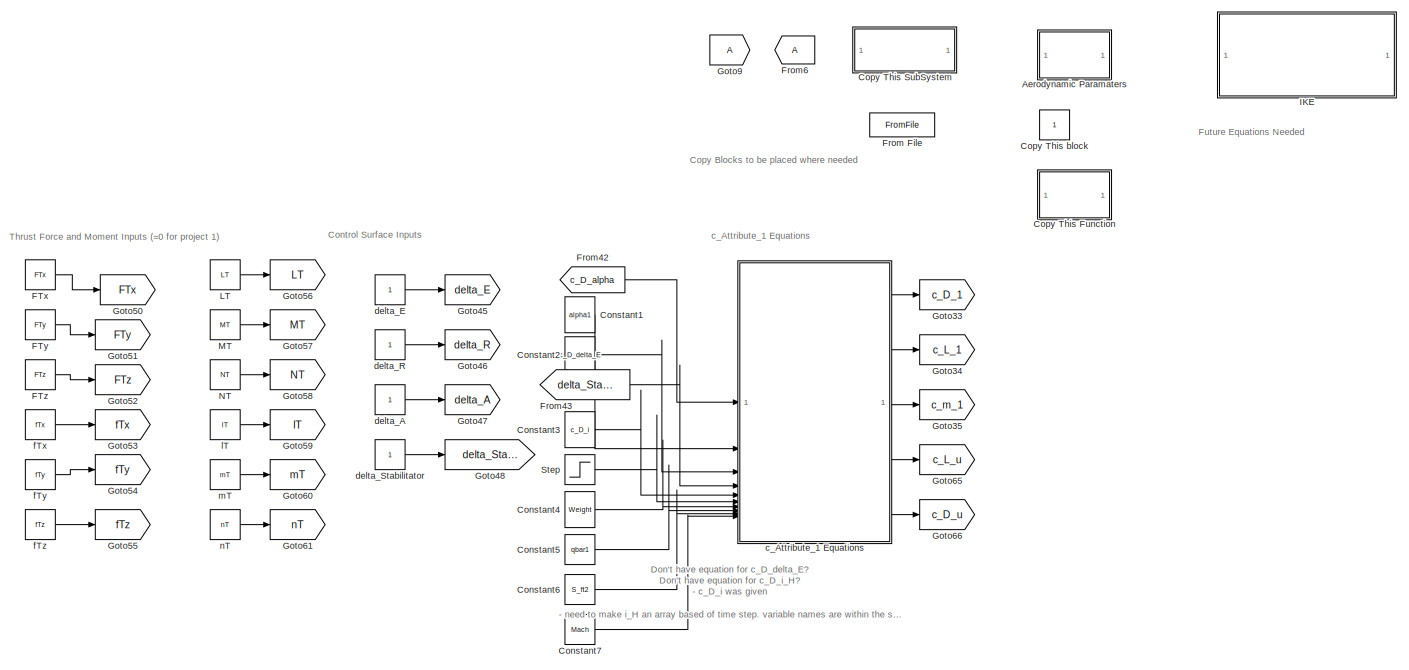
[diagram: root canvas - part 1/5, top left region]
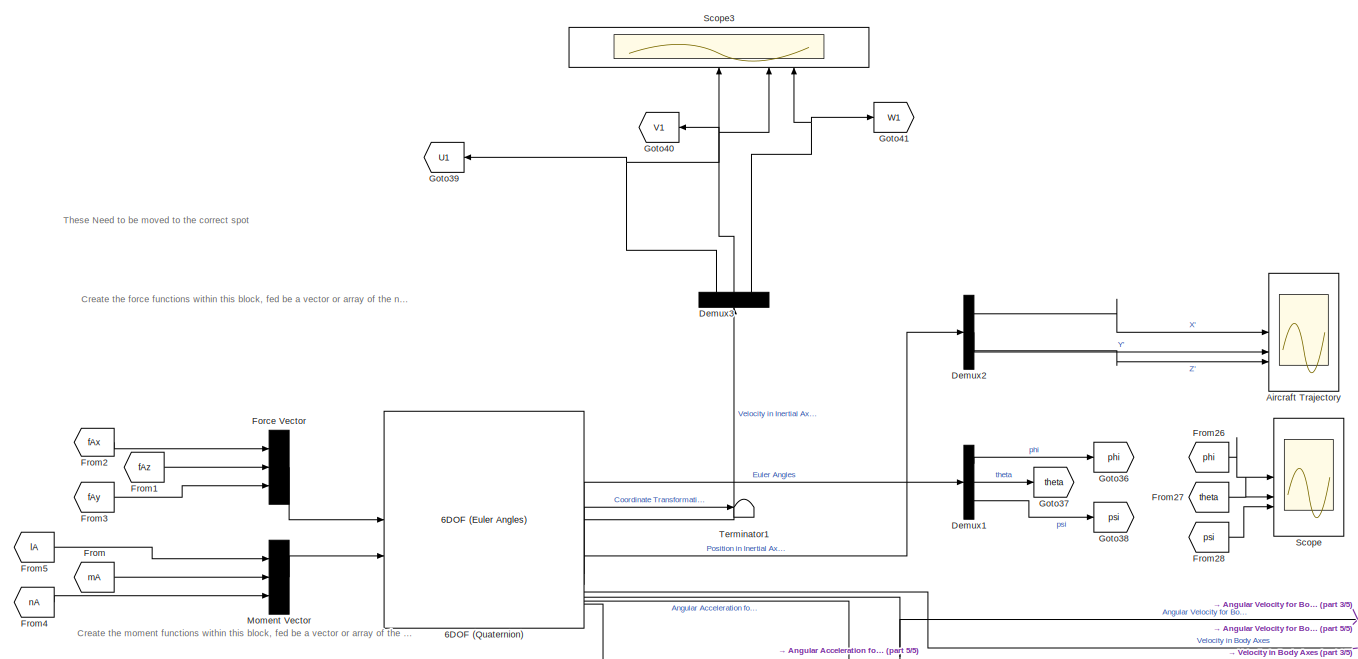
[diagram: root canvas - part 2/5, central region]
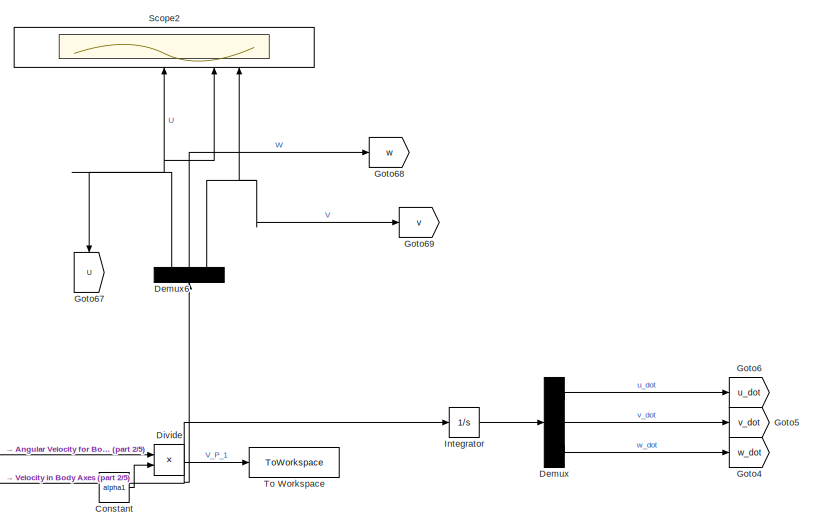
[diagram: root canvas - part 3/5, middle right region]
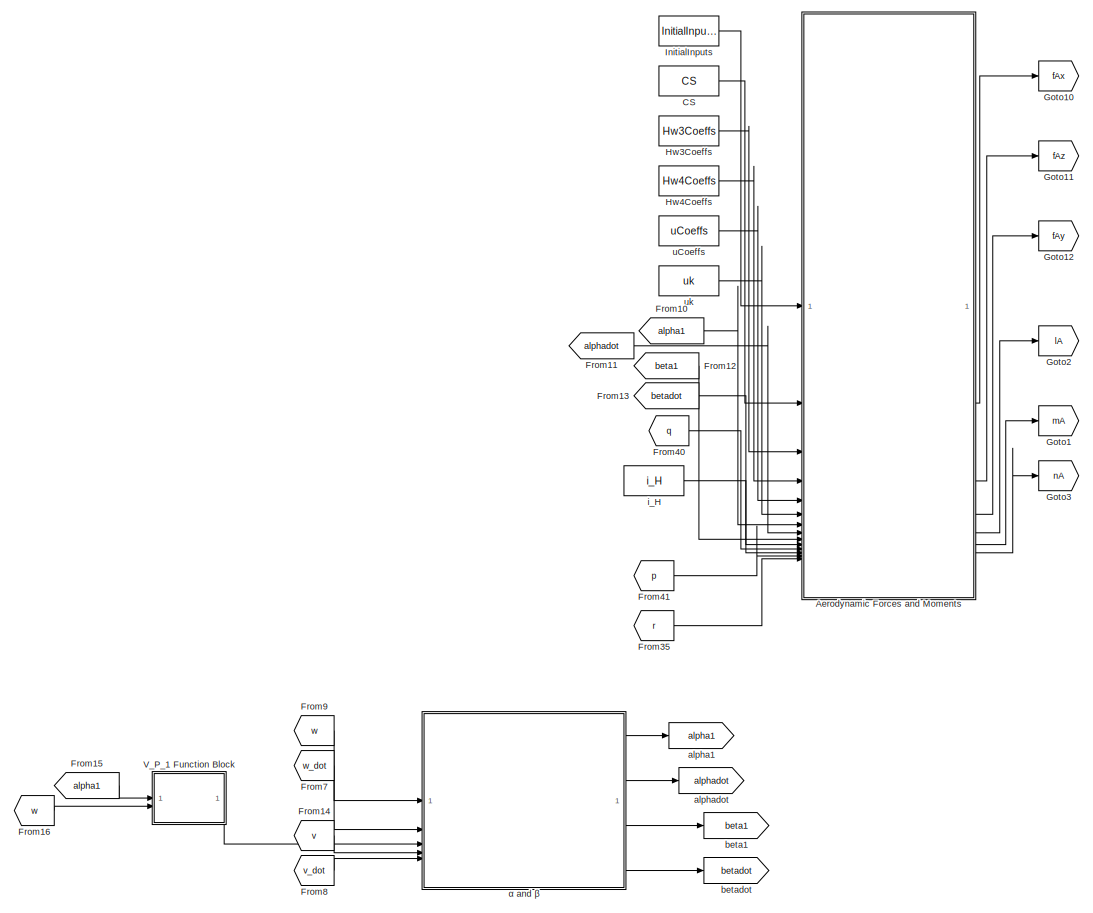
[diagram: root canvas - part 4/5, bottom left region]
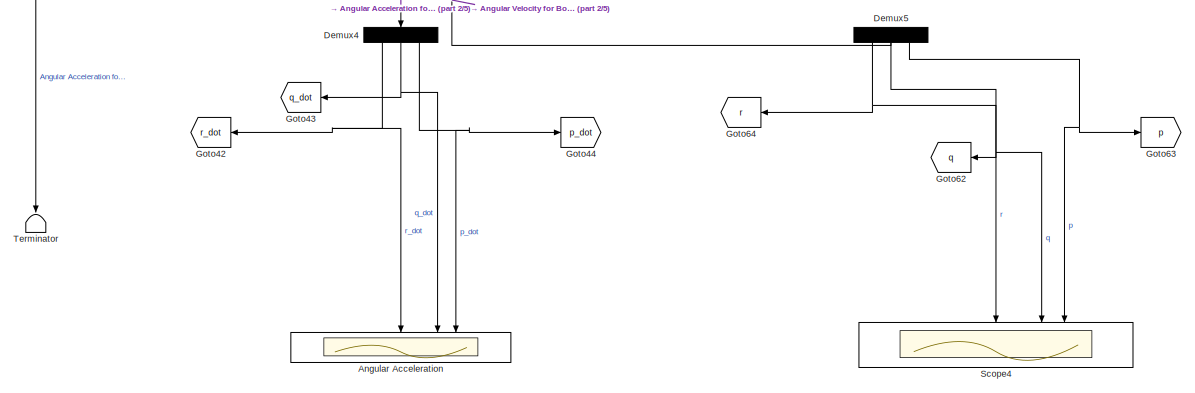
[diagram: root canvas - part 5/5, bottom center region]
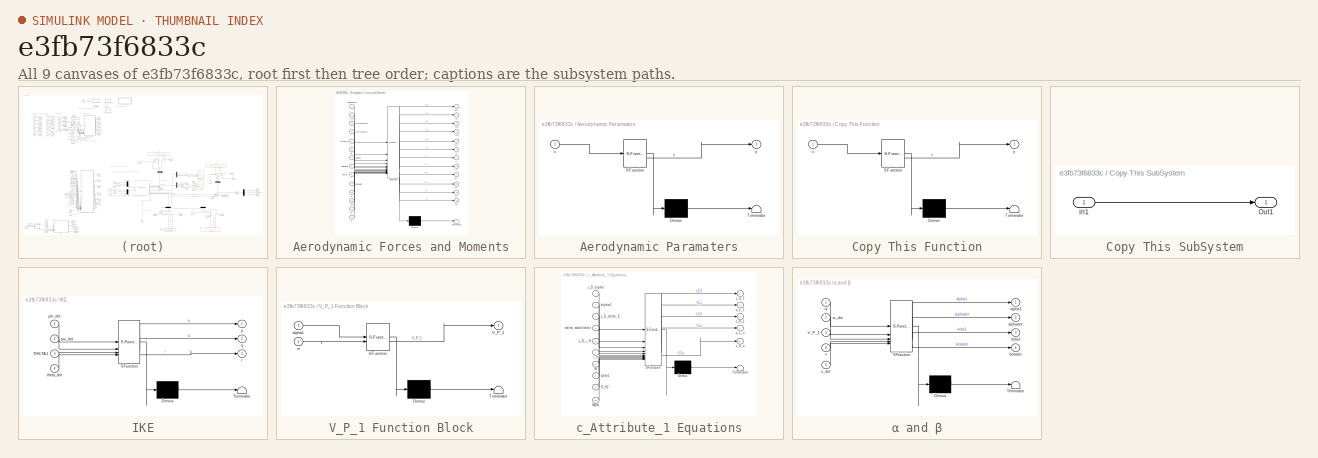
[diagram: thumbnail index - all 9 canvases of the model, root first then tree order]
MODEL slx_e3fb73f6833c
KIND model
CONFIG AbsTol = auto
CONFIG EnableMultiTasking = off
CONFIG FixedStep = auto
CONFIG MaxStep = auto
CONFIG MinStep = auto
CONFIG RelTol = 1e-3
CONFIG SampleTimeConstraint = Unconstrained
CONFIG SolverName = VariableStepAuto
CONFIG StartTime = 0.0
CONFIG StopTime = 10.0
BLOCK [Reference] 6DOF (Quaternion)  REF=shared6dof/6DOF (Euler Angles)
  LibrarySourceBlock = aerolib6dof2/6DOF (Quaternion)
  SourceBlock = shared6dof/6DOF (Euler Angles)
  SourceType = 6DOF EoM (Body Axis)
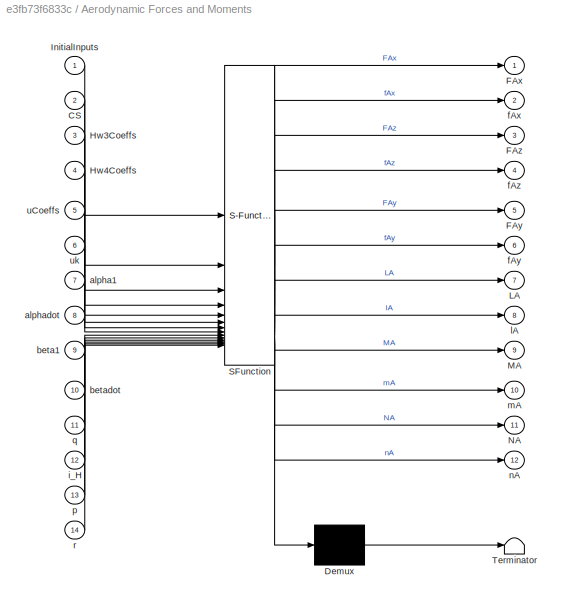
BLOCK [SubSystem] Aerodynamic Forces and Moments
  ErrorFcn = Stateflow.Translate.translate
  PermitHierarchicalResolution = ExplicitOnly
  SFBlockType = MATLAB Function
  TreatAsAtomicUnit = on
BLOCK [Demux] Aerodynamic Forces and Moments/ Demux 
  Outputs = 1
BLOCK [S-Function] Aerodynamic Forces and Moments/ SFunction 
  EnableBusSupport = on
  FunctionName = sf_sfun
  PortCounts = [14 13]
  SFcnIsStateOwnerBlock = off
  SFunctionDeploymentMode = off
  Tag = Stateflow S-Function 13
BLOCK [Terminator] Aerodynamic Forces and Moments/ Terminator 
BLOCK [Inport] Aerodynamic Forces and Moments/CS
  Port = 2
BLOCK [Outport] Aerodynamic Forces and Moments/FAx
BLOCK [Outport] Aerodynamic Forces and Moments/FAy
  Port = 5
BLOCK [Outport] Aerodynamic Forces and Moments/FAz
  Port = 3
BLOCK [Inport] Aerodynamic Forces and Moments/Hw3Coeffs
  Port = 3
BLOCK [Inport] Aerodynamic Forces and Moments/Hw4Coeffs
  Port = 4
BLOCK [Inport] Aerodynamic Forces and Moments/InitialInputs
BLOCK [Outport] Aerodynamic Forces and Moments/LA
  Port = 7
BLOCK [Outport] Aerodynamic Forces and Moments/MA
  Port = 9
BLOCK [Outport] Aerodynamic Forces and Moments/NA
  Port = 11
BLOCK [Inport] Aerodynamic Forces and Moments/alpha1
  Port = 7
BLOCK [Inport] Aerodynamic Forces and Moments/alphadot
  Port = 8
BLOCK [Inport] Aerodynamic Forces and Moments/beta1
  Port = 9
BLOCK [Inport] Aerodynamic Forces and Moments/betadot
  Port = 10
BLOCK [Outport] Aerodynamic Forces and Moments/fAx
  Port = 2
BLOCK [Outport] Aerodynamic Forces and Moments/fAy
  Port = 6
BLOCK [Outport] Aerodynamic Forces and Moments/fAz
  Port = 4
BLOCK [Inport] Aerodynamic Forces and Moments/i_H
  Port = 12
BLOCK [Outport] Aerodynamic Forces and Moments/lA
  Port = 8
BLOCK [Outport] Aerodynamic Forces and Moments/mA
  Port = 10
BLOCK [Outport] Aerodynamic Forces and Moments/nA
  Port = 12
BLOCK [Inport] Aerodynamic Forces and Moments/p
  Port = 13
BLOCK [Inport] Aerodynamic Forces and Moments/q
  Port = 11
BLOCK [Inport] Aerodynamic Forces and Moments/r
  Port = 14
BLOCK [Inport] Aerodynamic Forces and Moments/uCoeffs
  Port = 5
BLOCK [Inport] Aerodynamic Forces and Moments/uk
  Port = 6
BLOCK [SubSystem] Aerodynamic Paramaters
  ErrorFcn = Stateflow.Translate.translate
  PermitHierarchicalResolution = ExplicitOnly
  SFBlockType = MATLAB Function
  TreatAsAtomicUnit = on
BLOCK [Demux] Aerodynamic Paramaters/ Demux 
  Outputs = 1
BLOCK [S-Function] Aerodynamic Paramaters/ SFunction 
  EnableBusSupport = on
  FunctionName = sf_sfun
  PortCounts = [1 2]
  SFcnIsStateOwnerBlock = off
  SFunctionDeploymentMode = off
  Tag = Stateflow S-Function 3
BLOCK [Terminator] Aerodynamic Paramaters/ Terminator 
BLOCK [Inport] Aerodynamic Paramaters/u
BLOCK [Outport] Aerodynamic Paramaters/y
BLOCK [Scope] Aircraft Trajectory
  Floating = off
  NumInputPorts = 3
  ScopeSpecificationString = Simulink.scopes.TimeScopeBlockCfg('CurrentConfiguration', extmgr.ConfigurationSet(extmgr.Configuration('Core','General UI',true),extmgr.Configuration('Core','Source UI',true),extmgr.Configuration('Sources','WiredSimulink',true,'DataLoggingVariableName','ScopeData2'),extmgr.Configuration('Visuals','Time Domain',true),extmgr.Configuration('Tools','Plot Navigation',true),extmgr.Configuration('Tools',...<+58ch>
BLOCK [Scope] Angular Acceleration
  Floating = off
  NumInputPorts = 3
  ScopeSpecificationString = Simulink.scopes.TimeScopeBlockCfg('CurrentConfiguration', extmgr.ConfigurationSet(extmgr.Configuration('Core','General UI',true),extmgr.Configuration('Core','Source UI',true),extmgr.Configuration('Sources','WiredSimulink',true,'DataLoggingVariableName','ScopeData4'),extmgr.Configuration('Visuals','Time Domain',true),extmgr.Configuration('Tools','Plot Navigation',true),extmgr.Configuration('Tools',...<+40ch>
BLOCK [Constant] CS
  Value = CS
BLOCK [Constant] Constant
  Value = alpha1
BLOCK [Constant] Constant1
  NameLocation = left
  Value = alpha1
BLOCK [Constant] Constant2
  NameLocation = left
  Value = c_D_delta_E
BLOCK [Constant] Constant3
  NameLocation = left
  Value = c_D_i
BLOCK [Constant] Constant4
  NameLocation = left
  Value = Weight
BLOCK [Constant] Constant5
  Value = qbar1
BLOCK [Constant] Constant6
  Value = S_ft2
BLOCK [Constant] Constant7
  Value = Mach
BLOCK [SubSystem] Copy This Function
  ErrorFcn = Stateflow.Translate.translate
  PermitHierarchicalResolution = ExplicitOnly
  SFBlockType = MATLAB Function
  TreatAsAtomicUnit = on
BLOCK [Demux] Copy This Function/ Demux 
  Outputs = 1
BLOCK [S-Function] Copy This Function/ SFunction 
  EnableBusSupport = on
  FunctionName = sf_sfun
  PortCounts = [1 2]
  SFcnIsStateOwnerBlock = off
  SFunctionDeploymentMode = off
  Tag = Stateflow S-Function 4
BLOCK [Terminator] Copy This Function/ Terminator 
BLOCK [Inport] Copy This Function/u
BLOCK [Outport] Copy This Function/y
BLOCK [SubSystem] Copy This SubSystem
BLOCK [Inport] Copy This SubSystem/In1
BLOCK [Outport] Copy This SubSystem/Out1
BLOCK [Constant] Copy This block
BLOCK [Demux] Demux
  Outputs = 3
BLOCK [Demux] Demux1
  Outputs = 3
BLOCK [Demux] Demux2
  Outputs = 3
BLOCK [Demux] Demux3
  NameLocation = right
  Outputs = 3
BLOCK [Demux] Demux4
  NameLocation = left
  Outputs = 3
BLOCK [Demux] Demux5
  NameLocation = left
  Outputs = 3
BLOCK [Demux] Demux6
  NameLocation = right
  Outputs = 3
BLOCK [Product] Divide
  Inputs = */
  Multiplication = Matrix(*)
BLOCK [Constant] FTx
  Value = FTx
BLOCK [Constant] FTy
  Value = FTy
BLOCK [Constant] FTz
  Value = FTz
BLOCK [Mux] Force Vector
  DisplayOption = bar
  Inputs = 3
BLOCK [From] From
  GotoTag = mA
BLOCK [FromFile] From File
  SampleTime = 0
BLOCK [From] From1
  GotoTag = fAz
BLOCK [From] From10
  GotoTag = alpha1
BLOCK [From] From11
  GotoTag = alphadot
BLOCK [From] From12
  GotoTag = beta1
BLOCK [From] From13
  GotoTag = betadot
BLOCK [From] From14
  GotoTag = v
BLOCK [From] From15
  GotoTag = alpha1
BLOCK [From] From16
  GotoTag = w
BLOCK [From] From2
  GotoTag = fAx
BLOCK [From] From26
  GotoTag = phi
BLOCK [From] From27
  GotoTag = theta
BLOCK [From] From28
  GotoTag = psi
BLOCK [From] From3
  GotoTag = fAy
BLOCK [From] From35
  GotoTag = r
BLOCK [From] From4
  GotoTag = nA
BLOCK [From] From40
  GotoTag = q
BLOCK [From] From41
  GotoTag = p
BLOCK [From] From42
  GotoTag = c_D_alpha
BLOCK [From] From43
  GotoTag = delta_Stabilitator
BLOCK [From] From5
  GotoTag = lA
BLOCK [From] From6
BLOCK [From] From7
  GotoTag = w_dot
BLOCK [From] From8
  GotoTag = v_dot
BLOCK [From] From9
  GotoTag = w
BLOCK [Goto] Goto1
  GotoTag = mA
BLOCK [Goto] Goto10
  GotoTag = fAx
BLOCK [Goto] Goto11
  GotoTag = fAz
BLOCK [Goto] Goto12
  GotoTag = fAy
BLOCK [Goto] Goto2
  GotoTag = lA
BLOCK [Goto] Goto3
  GotoTag = nA
BLOCK [Goto] Goto33
  GotoTag = c_D_1
BLOCK [Goto] Goto34
  GotoTag = c_L_1
BLOCK [Goto] Goto35
  GotoTag = c_m_1
BLOCK [Goto] Goto36
  GotoTag = phi
BLOCK [Goto] Goto37
  GotoTag = theta
BLOCK [Goto] Goto38
  GotoTag = psi
BLOCK [Goto] Goto39
  GotoTag = U1
BLOCK [Goto] Goto4
  GotoTag = w_dot
BLOCK [Goto] Goto40
  GotoTag = V1
BLOCK [Goto] Goto41
  GotoTag = W1
BLOCK [Goto] Goto42
  GotoTag = r_dot
BLOCK [Goto] Goto43
  GotoTag = q_dot
BLOCK [Goto] Goto44
  GotoTag = p_dot
BLOCK [Goto] Goto45
  GotoTag = delta_E
BLOCK [Goto] Goto46
  GotoTag = delta_R
BLOCK [Goto] Goto47
  GotoTag = delta_A
BLOCK [Goto] Goto48
  GotoTag = delta_Stabilitator
BLOCK [Goto] Goto5
  GotoTag = v_dot
  NameLocation = top
BLOCK [Goto] Goto50
  GotoTag = FTx
BLOCK [Goto] Goto51
  GotoTag = FTy
BLOCK [Goto] Goto52
  GotoTag = FTz
BLOCK [Goto] Goto53
  GotoTag = fTx
BLOCK [Goto] Goto54
  GotoTag = fTy
BLOCK [Goto] Goto55
  GotoTag = fTz
BLOCK [Goto] Goto56
  GotoTag = LT
BLOCK [Goto] Goto57
  GotoTag = MT
BLOCK [Goto] Goto58
  GotoTag = NT
BLOCK [Goto] Goto59
  GotoTag = lT
BLOCK [Goto] Goto6
  GotoTag = u_dot
BLOCK [Goto] Goto60
  GotoTag = mT
BLOCK [Goto] Goto61
  GotoTag = nT
BLOCK [Goto] Goto62
  GotoTag = q
BLOCK [Goto] Goto63
  GotoTag = p
BLOCK [Goto] Goto64
  GotoTag = r
BLOCK [Goto] Goto65
  GotoTag = c_L_u
BLOCK [Goto] Goto66
  GotoTag = c_D_u
BLOCK [Goto] Goto67
  GotoTag = U
  NameLocation = left
BLOCK [Goto] Goto68
  GotoTag = w
BLOCK [Goto] Goto69
  GotoTag = v
  NameLocation = top
BLOCK [Goto] Goto9
BLOCK [Constant] Hw3Coeffs
  Value = Hw3Coeffs
BLOCK [Constant] Hw4Coeffs
  Value = Hw4Coeffs
BLOCK [SubSystem] IKE
  ErrorFcn = Stateflow.Translate.translate
  PermitHierarchicalResolution = ExplicitOnly
  SFBlockType = MATLAB Function
  TreatAsAtomicUnit = on
BLOCK [Demux] IKE/ Demux 
  Outputs = 1
BLOCK [S-Function] IKE/ SFunction 
  EnableBusSupport = on
  FunctionName = sf_sfun
  PortCounts = [4 4]
  SFcnIsStateOwnerBlock = off
  SFunctionDeploymentMode = off
  Tag = Stateflow S-Function 15
BLOCK [Terminator] IKE/ Terminator 
BLOCK [Inport] IKE/THETA1
  Port = 3
BLOCK [Outport] IKE/p
BLOCK [Inport] IKE/phi_dot
BLOCK [Inport] IKE/psi_dot
  Port = 2
BLOCK [Outport] IKE/q
  Port = 2
BLOCK [Outport] IKE/r
  Port = 3
BLOCK [Inport] IKE/theta_dot
  Port = 4
BLOCK [Constant] InitialInputs
  Value = InitialInputs
BLOCK [Integrator] Integrator
BLOCK [Constant] LT
  Value = LT
BLOCK [Constant] MT
  Value = MT
BLOCK [Mux] Moment Vector
  DisplayOption = bar
  Inputs = 3
BLOCK [Constant] NT
  Value = NT
BLOCK [Scope] Scope
  Floating = off
  NumInputPorts = 3
  ScopeSpecificationString = Simulink.scopes.TimeScopeBlockCfg('CurrentConfiguration', extmgr.ConfigurationSet(extmgr.Configuration('Core','General UI',true),extmgr.Configuration('Core','Source UI',true),extmgr.Configuration('Sources','WiredSimulink',true,'DataLoggingVariableName','ScopeData1'),extmgr.Configuration('Visuals','Time Domain',true),extmgr.Configuration('Tools','Plot Navigation',true),extmgr.Configuration('Tools',...<+40ch>
BLOCK [Scope] Scope2
  Floating = off
  NameLocation = right
  NumInputPorts = 3
  ScopeSpecificationString = Simulink.scopes.TimeScopeBlockCfg('CurrentConfiguration', extmgr.ConfigurationSet(extmgr.Configuration('Core','General UI',true),extmgr.Configuration('Core','Source UI',true),extmgr.Configuration('Sources','WiredSimulink',true,'DataLoggingVariableName','ScopeData1'),extmgr.Configuration('Visuals','Time Domain',true),extmgr.Configuration('Tools','Plot Navigation',true),extmgr.Configuration('Tools',...<+58ch>
BLOCK [Scope] Scope3
  Floating = off
  NameLocation = right
  NumInputPorts = 3
  ScopeSpecificationString = Simulink.scopes.TimeScopeBlockCfg('CurrentConfiguration', extmgr.ConfigurationSet(extmgr.Configuration('Core','General UI',true),extmgr.Configuration('Core','Source UI',true),extmgr.Configuration('Sources','WiredSimulink',true,'DataLoggingVariableName','ScopeData3'),extmgr.Configuration('Visuals','Time Domain',true),extmgr.Configuration('Tools','Plot Navigation',true),extmgr.Configuration('Tools',...<+58ch>
BLOCK [Scope] Scope4
  Floating = off
  NameLocation = left
  NumInputPorts = 3
  ScopeSpecificationString = Simulink.scopes.TimeScopeBlockCfg('CurrentConfiguration', extmgr.ConfigurationSet(extmgr.Configuration('Core','General UI',true),extmgr.Configuration('Core','Source UI',true),extmgr.Configuration('Sources','WiredSimulink',true,'DataLoggingVariableName','ScopeData5'),extmgr.Configuration('Visuals','Time Domain',true),extmgr.Configuration('Tools','Plot Navigation',true),extmgr.Configuration('Tools',...<+40ch>
BLOCK [Step] Step
  After = t_max
  Before = i_H
  SampleTime = 0
  Time = t
BLOCK [Terminator] Terminator
  NameLocation = left
BLOCK [Terminator] Terminator1
BLOCK [ToWorkspace] To Workspace
  FixptAsFi = on
  MaxDataPoints = inf
  SampleTime = -1
  SaveFormat = Timeseries
  VariableName = simout
BLOCK [SubSystem] V_P_1 Function Block
  ErrorFcn = Stateflow.Translate.translate
  PermitHierarchicalResolution = ExplicitOnly
  SFBlockType = MATLAB Function
  TreatAsAtomicUnit = on
BLOCK [Demux] V_P_1 Function Block/ Demux 
  Outputs = 1
BLOCK [S-Function] V_P_1 Function Block/ SFunction 
  EnableBusSupport = off
  FunctionName = sf_sfun
  PortCounts = [2 2]
  SFcnIsStateOwnerBlock = off
  SFunctionDeploymentMode = off
  Tag = Stateflow S-Function 2
BLOCK [Terminator] V_P_1 Function Block/ Terminator 
BLOCK [Outport] V_P_1 Function Block/V_P_1
BLOCK [Inport] V_P_1 Function Block/alpha1
BLOCK [Inport] V_P_1 Function Block/w
  Port = 2
BLOCK [Goto] alpha1
  GotoTag = alpha1
BLOCK [Goto] alphadot
  GotoTag = alphadot
BLOCK [Goto] beta1
  GotoTag = beta1
BLOCK [Goto] betadot
  GotoTag = betadot
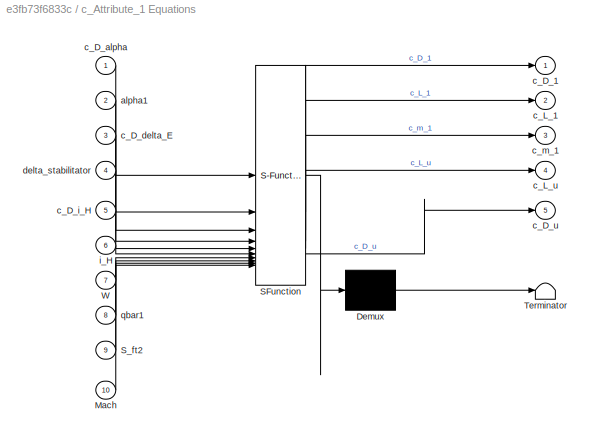
BLOCK [SubSystem] c_Attribute_1 Equations
  ErrorFcn = Stateflow.Translate.translate
  PermitHierarchicalResolution = ExplicitOnly
  SFBlockType = MATLAB Function
  TreatAsAtomicUnit = on
BLOCK [Demux] c_Attribute_1 Equations/ Demux 
  Outputs = 1
BLOCK [S-Function] c_Attribute_1 Equations/ SFunction 
  EnableBusSupport = on
  FunctionName = sf_sfun
  PortCounts = [10 6]
  SFcnIsStateOwnerBlock = off
  SFunctionDeploymentMode = off
  Tag = Stateflow S-Function 10
BLOCK [Terminator] c_Attribute_1 Equations/ Terminator 
BLOCK [Inport] c_Attribute_1 Equations/Mach
  Port = 10
BLOCK [Inport] c_Attribute_1 Equations/S_ft2
  Port = 9
BLOCK [Inport] c_Attribute_1 Equations/W
  Port = 7
BLOCK [Inport] c_Attribute_1 Equations/alpha1
  Port = 2
BLOCK [Outport] c_Attribute_1 Equations/c_D_1
BLOCK [Inport] c_Attribute_1 Equations/c_D_alpha
BLOCK [Inport] c_Attribute_1 Equations/c_D_delta_E
  Port = 3
BLOCK [Inport] c_Attribute_1 Equations/c_D_i_H
  Port = 5
BLOCK [Outport] c_Attribute_1 Equations/c_D_u
  Port = 5
BLOCK [Outport] c_Attribute_1 Equations/c_L_1
  Port = 2
BLOCK [Outport] c_Attribute_1 Equations/c_L_u
  Port = 4
BLOCK [Outport] c_Attribute_1 Equations/c_m_1
  Port = 3
BLOCK [Inport] c_Attribute_1 Equations/delta_stabilitator
  Port = 4
BLOCK [Inport] c_Attribute_1 Equations/i_H
  Port = 6
BLOCK [Inport] c_Attribute_1 Equations/qbar1
  Port = 8
BLOCK [Constant] delta_A
BLOCK [Constant] delta_E
BLOCK [Constant] delta_R
BLOCK [Constant] delta_Stabilitator
BLOCK [Constant] fTx
  Value = fTx
BLOCK [Constant] fTy
  Value = fTy
BLOCK [Constant] fTz
  Value = fTz
BLOCK [Constant] i_H
  Value = i_H
BLOCK [Constant] lT
  Value = lT
BLOCK [Constant] mT
  Value = mT
BLOCK [Constant] nT
  Value = nT
BLOCK [Constant] uCoeffs
  Value = uCoeffs
BLOCK [Constant] uk
  Value = uk
BLOCK [SubSystem] α and β
  ErrorFcn = Stateflow.Translate.translate
  PermitHierarchicalResolution = ExplicitOnly
  SFBlockType = MATLAB Function
  TreatAsAtomicUnit = on
BLOCK [Demux] α and β/ Demux 
  Outputs = 1
BLOCK [S-Function] α and β/ SFunction 
  EnableBusSupport = on
  FunctionName = sf_sfun
  PortCounts = [5 5]
  SFcnIsStateOwnerBlock = off
  SFunctionDeploymentMode = off
  Tag = Stateflow S-Function 1
BLOCK [Terminator] α and β/ Terminator 
BLOCK [Inport] α and β/V_P_1
  Port = 3
BLOCK [Outport] α and β/alpha1
BLOCK [Outport] α and β/alphadot
  Port = 2
BLOCK [Outport] α and β/beta1
  Port = 3
BLOCK [Outport] α and β/betadot
  Port = 4
BLOCK [Inport] α and β/v
  Port = 4
BLOCK [Inport] α and β/v_dot
  Port = 5
BLOCK [Inport] α and β/w
BLOCK [Inport] α and β/w_dot
  Port = 2
ANNOTATION (root): Control Surface Inputs
ANNOTATION (root): Copy Blocks to be placed where needed
ANNOTATION (root): Create the force functions within this block, fed be a vector or array of the needed variables
ANNOTATION (root): Create the moment functions within this block, fed be a vector or array of the needed variables
ANNOTATION (root): Don't have equation for c_D_delta_E? Don't have equation for c_D_i_H? - c_D_i was given - need to make i_H an array based of time step. variable names are within the step block
ANNOTATION (root): Future Equations Needed
ANNOTATION (root): These Need to be moved to the correct spot
ANNOTATION (root): Thrust Force and Moment Inputs (=0 for project 1)
ANNOTATION (root): c_Attribute_1 Equations
LINE 6DOF (Quaternion):1 -> Demux3:1
LINE 6DOF (Quaternion):2 -> Demux2:1
LINE 6DOF (Quaternion):3 -> Demux1:1
LINE 6DOF (Quaternion):4 -> Terminator1:1
NET 6DOF (Quaternion):5 -> Demux6:1, Integrator:1
NET 6DOF (Quaternion):6 -> Demux5:1, Divide:1
LINE 6DOF (Quaternion):7 -> Demux4:1
LINE 6DOF (Quaternion):8 -> Terminator:1
LINE Aerodynamic Forces and Moments:10 -> Goto1:1
LINE Aerodynamic Forces and Moments:12 -> Goto3:1
LINE Aerodynamic Forces and Moments:2 -> Goto10:1
LINE Aerodynamic Forces and Moments:4 -> Goto11:1
LINE Aerodynamic Forces and Moments:6 -> Goto12:1
LINE Aerodynamic Forces and Moments:8 -> Goto2:1
LINE CS:1 -> Aerodynamic Forces and Moments:2
LINE Constant1:1 -> c_Attribute_1 Equations:2
LINE Constant2:1 -> c_Attribute_1 Equations:3
LINE Constant3:1 -> c_Attribute_1 Equations:5
LINE Constant4:1 -> c_Attribute_1 Equations:7
LINE Constant5:1 -> c_Attribute_1 Equations:8
LINE Constant6:1 -> c_Attribute_1 Equations:9
LINE Constant7:1 -> c_Attribute_1 Equations:10
LINE Constant:1 -> Divide:2
LINE Copy This SubSystem/In1:1 -> Copy This SubSystem/Out1:1
LINE Demux1:1 -> Goto36:1
LINE Demux1:2 -> Goto37:1
LINE Demux1:3 -> Goto38:1
LINE Demux2:1 -> Aircraft Trajectory:1
LINE Demux2:2 -> Aircraft Trajectory:2
LINE Demux2:3 -> Aircraft Trajectory:3
NET Demux3:1 -> Goto39:1, Scope3:1
NET Demux3:2 -> Goto40:1, Scope3:2
NET Demux3:3 -> Goto41:1, Scope3:3
NET Demux4:1 -> Angular Acceleration:1, Goto42:1
NET Demux4:2 -> Angular Acceleration:2, Goto43:1
NET Demux4:3 -> Angular Acceleration:3, Goto44:1
NET Demux5:1 -> Goto64:1, Scope4:1
NET Demux5:2 -> Goto62:1, Scope4:2
NET Demux5:3 -> Goto63:1, Scope4:3
NET Demux6:1 -> Goto67:1, Scope2:1
NET Demux6:2 -> Goto68:1, Scope2:2
NET Demux6:3 -> Goto69:1, Scope2:3
LINE Demux:1 -> Goto6:1
LINE Demux:2 -> Goto5:1
LINE Demux:3 -> Goto4:1
LINE Divide:1 -> To Workspace:1
LINE FTx:1 -> Goto50:1
LINE FTy:1 -> Goto51:1
LINE FTz:1 -> Goto52:1
LINE Force Vector:1 -> 6DOF (Quaternion):1
LINE From10:1 -> Aerodynamic Forces and Moments:7
LINE From11:1 -> Aerodynamic Forces and Moments:8
LINE From12:1 -> Aerodynamic Forces and Moments:9
LINE From13:1 -> Aerodynamic Forces and Moments:10
LINE From14:1 -> α and β:4
LINE From15:1 -> V_P_1 Function Block:1
LINE From16:1 -> V_P_1 Function Block:2
LINE From1:1 -> Force Vector:2
LINE From26:1 -> Scope:1
LINE From27:1 -> Scope:2
LINE From28:1 -> Scope:3
LINE From2:1 -> Force Vector:1
LINE From35:1 -> Aerodynamic Forces and Moments:14
LINE From3:1 -> Force Vector:3
LINE From40:1 -> Aerodynamic Forces and Moments:11
LINE From41:1 -> Aerodynamic Forces and Moments:13
LINE From42:1 -> c_Attribute_1 Equations:1
LINE From43:1 -> c_Attribute_1 Equations:4
LINE From4:1 -> Moment Vector:3
LINE From5:1 -> Moment Vector:1
LINE From7:1 -> α and β:2
LINE From8:1 -> α and β:5
LINE From9:1 -> α and β:1
LINE From:1 -> Moment Vector:2
LINE Hw3Coeffs:1 -> Aerodynamic Forces and Moments:3
LINE Hw4Coeffs:1 -> Aerodynamic Forces and Moments:4
LINE InitialInputs:1 -> Aerodynamic Forces and Moments:1
LINE Integrator:1 -> Demux:1
LINE LT:1 -> Goto56:1
LINE MT:1 -> Goto57:1
LINE Moment Vector:1 -> 6DOF (Quaternion):2
LINE NT:1 -> Goto58:1
LINE Step:1 -> c_Attribute_1 Equations:6
LINE V_P_1 Function Block:1 -> α and β:3
LINE c_Attribute_1 Equations:1 -> Goto33:1
LINE c_Attribute_1 Equations:2 -> Goto34:1
LINE c_Attribute_1 Equations:3 -> Goto35:1
LINE c_Attribute_1 Equations:4 -> Goto65:1
LINE c_Attribute_1 Equations:5 -> Goto66:1
LINE delta_A:1 -> Goto47:1
LINE delta_E:1 -> Goto45:1
LINE delta_R:1 -> Goto46:1
LINE delta_Stabilitator:1 -> Goto48:1
LINE fTx:1 -> Goto53:1
LINE fTy:1 -> Goto54:1
LINE fTz:1 -> Goto55:1
LINE i_H:1 -> Aerodynamic Forces and Moments:12
LINE lT:1 -> Goto59:1
LINE mT:1 -> Goto60:1
LINE nT:1 -> Goto61:1
LINE uCoeffs:1 -> Aerodynamic Forces and Moments:5
LINE uk:1 -> Aerodynamic Forces and Moments:6
LINE α and β:1 -> alpha1:1
LINE α and β:2 -> alphadot:1
LINE α and β:3 -> beta1:1
LINE α and β:4 -> betadot:1
note: NET lines group one-source signal fan-out (src -> all destinations, sorted); 1:1 wires keep LINE
CHART Aerodynamic Forces and Moments states=1 transitions=1
  STATE_LABEL 'eML_blk_kernel()'
  STATE_LABEL 'SCRIPT:\nfunction [FAx, fAx, FAz, fAz, FAy, fAy, LA, lA, MA, mA, NA, nA]  = fcn(InitialInputs, CS, Hw3Coeffs, Hw4Coeffs, uCoeffs, uk,   alpha1, alphadot, beta1, betadot, q, i_H, p, r)\nqbar1 = InitialInputs(1); S_ft2 = InitialInputs(2); c_D_1 = InitialInputs(3); c_L_1 = InitialInputs(4); cbar_ft = InitialInputs(5); c_m_1 = InitialInputs(6); uv = InitialInputs(7);\ndeltaA = CS(1); deltaR = CS(2); delt...<+2208ch>'
CHART IKE states=1 transitions=1
  STATE_LABEL 'eML_blk_kernel()'
  STATE_LABEL 'SCRIPT:\nfunction [p,q,r] = fcn(phi_dot, psi_dot, THETA1, theta_dot)\n\np = (phi_dot)-(psi_dot*sind(THETA1));\nq = theta_dot;\nr = psi_dot*cosd(THETA1);\n\n\ny = u;\n'
CHART α and β states=1 transitions=1
  STATE_LABEL 'eML_blk_kernel()'
  STATE_LABEL 'SCRIPT:\nfunction [alpha1, alphadot, beta1, betadot] = fcn(w, w_dot, V_P_1, v, v_dot)\n\nalpha1 = w/V_P_1;\n\nalphadot = w_dot/V_P_1;\n\nbeta1 = v/V_P_1;\n\nbetadot = v_dot/V_P_1;\n\n'
CHART V_P_1 Function Block states=1 transitions=1
  STATE_LABEL 'eML_blk_kernel()'
  STATE_LABEL 'SCRIPT:\nfunction V_P_1 = fcn(alpha1,w)\n\nalpha1 = deg2rad(alpha1); \nV_P_1 = w/alpha1;\n\n\n\ny = u;\n'
CHART Aerodynamic Paramaters states=1 transitions=1
  STATE_LABEL 'eML_blk_kernel()'
  STATE_LABEL 'SCRIPT:\nfunction y = fcn(u)\n\ny = u;\n'
CHART Copy This Function states=1 transitions=1
  STATE_LABEL 'eML_blk_kernel()'
  STATE_LABEL 'SCRIPT:\nfunction y = fcn(u)\n\ny = u;\n'
CHART c_Attribute_1 Equations states=1 transitions=1
  STATE_LABEL 'eML_blk_kernel()'
  STATE_LABEL 'SCRIPT:\nfunction [c_D_1, c_L_1, c_m_1, c_L_u, c_D_u] = fcn(c_D_alpha, alpha1, c_D_delta_E, delta_stabilitator, c_D_i_H, i_H, W, qbar1, S_ft2, Mach)\n\nc_D_0 = 0;\n\nc_D_1 = c_D_0 + (c_D_alpha*alpha1) + (c_D_delta_E * delta_stabilitator) + (c_D_i_H*i_H);\n\nc_L_1 = W/(qbar1*S_ft2);\n\nc_m_1 = 0;\n\nc_L_u = ((Mach^2)/(1-Mach^2))*c_L_1;\n\nc_D_u = 0;\n'
CHART  states=0 transitions=0
CHART  states=0 transitions=0
CHART  states=0 transitions=0
CHART  states=0 transitions=0
CHART  states=0 transitions=0
CHART  states=0 transitions=0
CHART  states=0 transitions=0
